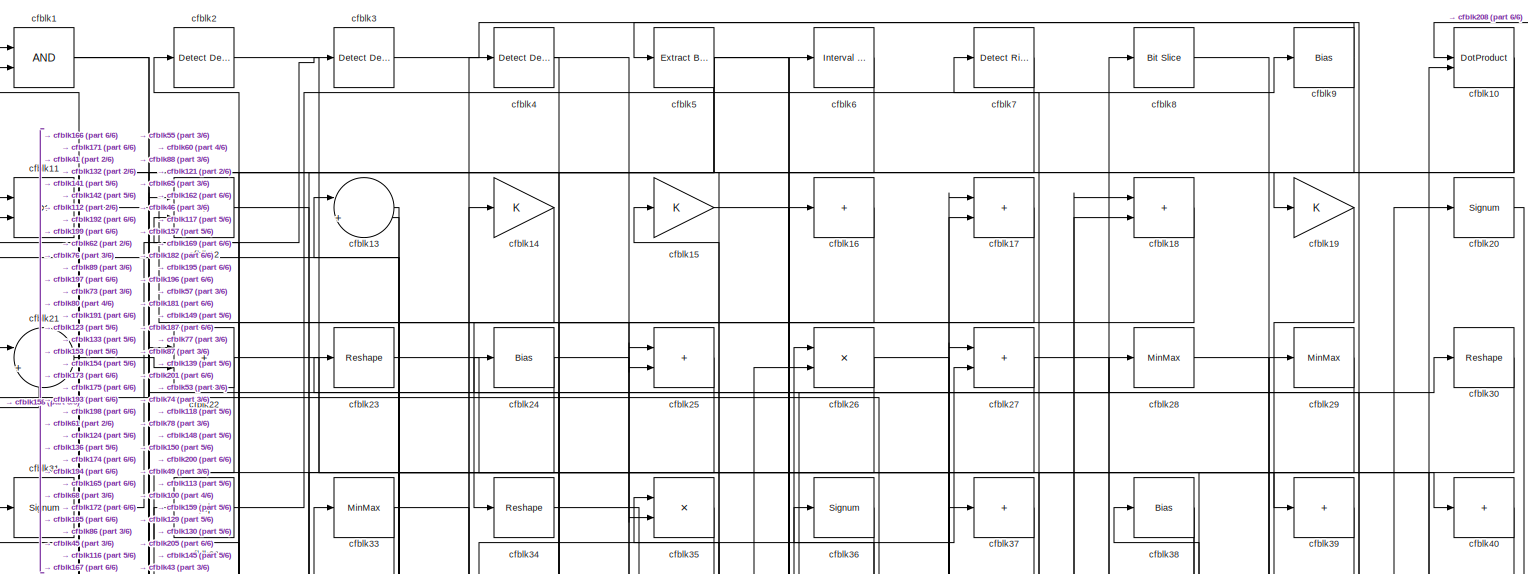
[diagram: root canvas - part 1/6, full width, top band]
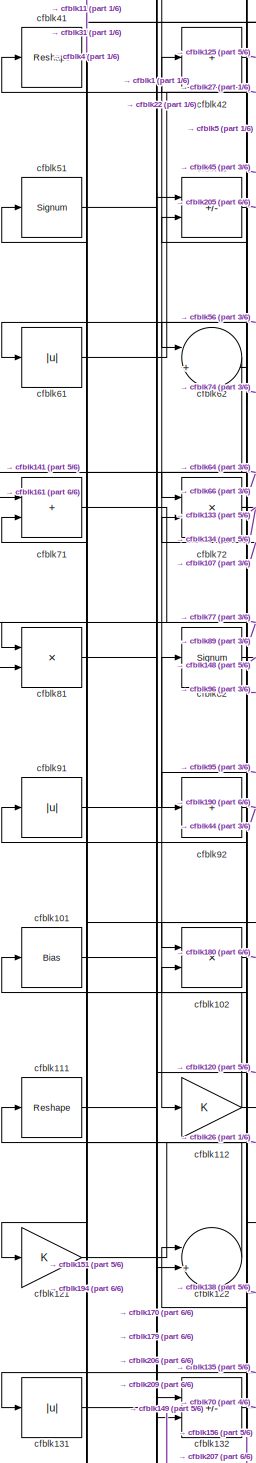
[diagram: root canvas - part 2/6, middle left region]
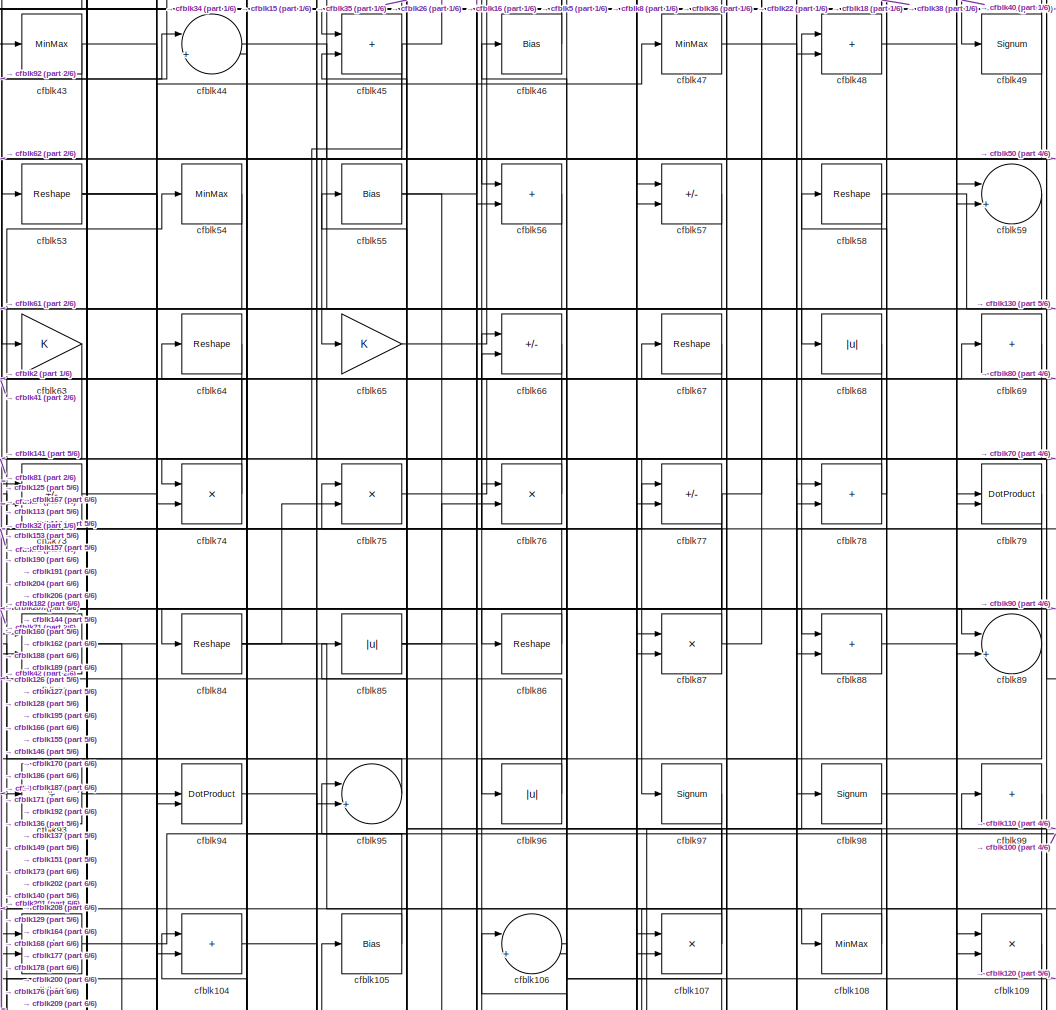
[diagram: root canvas - part 3/6, central region]
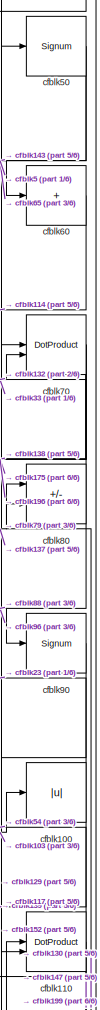
[diagram: root canvas - part 4/6, middle right region]
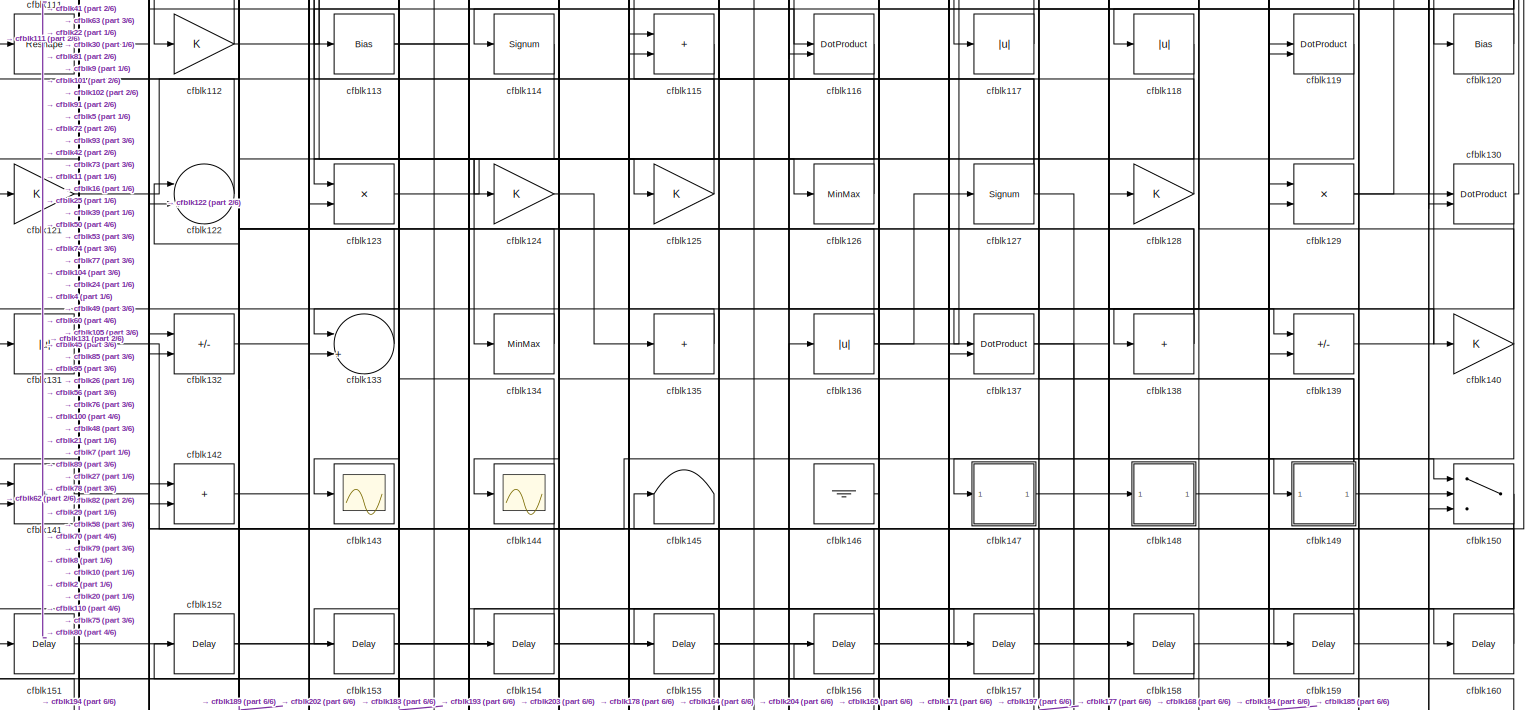
[diagram: root canvas - part 5/6, full width, middle band]
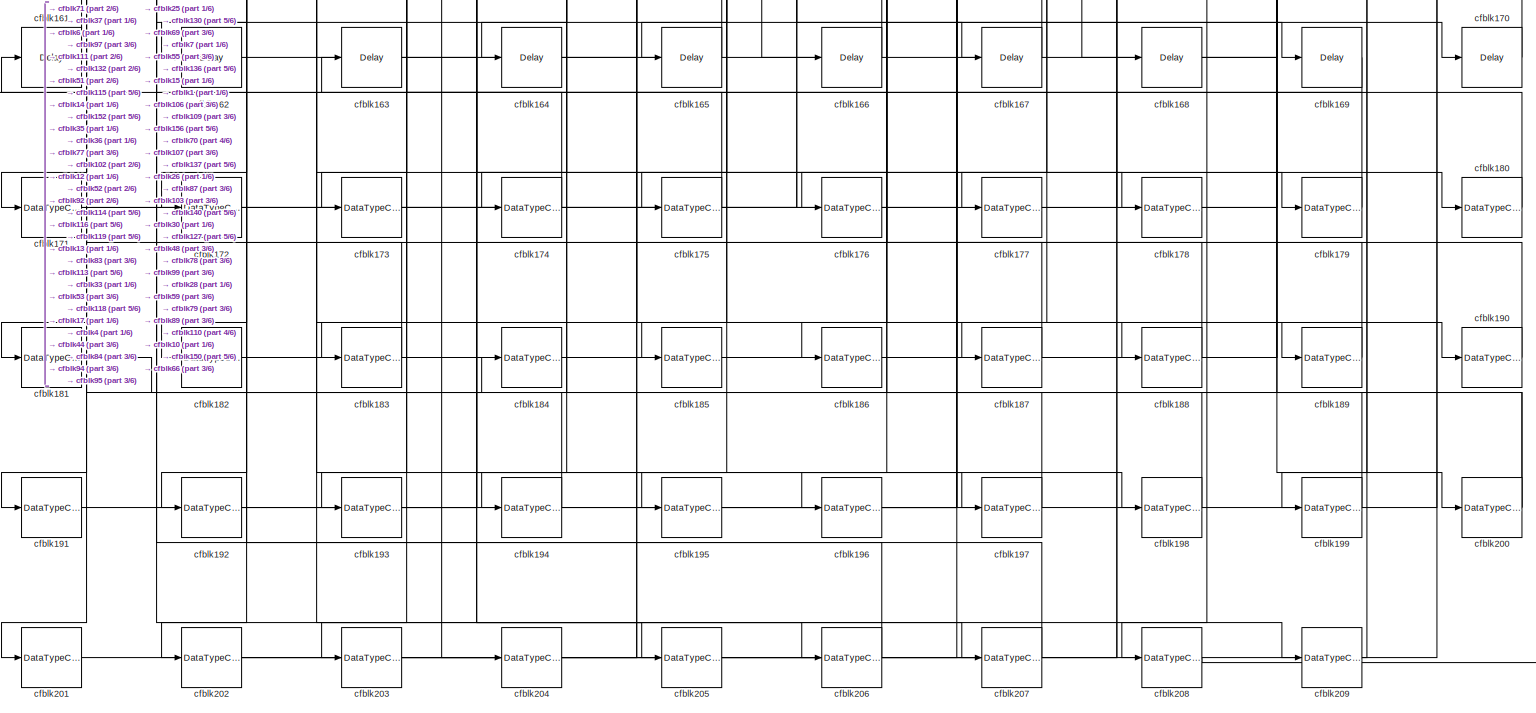
[diagram: root canvas - part 6/6, full width, bottom band]
MODEL slx_96a3ec69df8d
KIND model
CONFIG AbsTol = auto
CONFIG EnableMultiTasking = off
CONFIG FixedStep = auto
CONFIG MaxStep = auto
CONFIG MinStep = auto
CONFIG RelTol = 1e-3
CONFIG SampleTimeConstraint = Unconstrained
CONFIG SolverName = VariableStepAuto
CONFIG StartTime = 0.0
CONFIG StopTime = 10.0
BLOCK [Logic] cfblk1
  AllPortsSameDT = off
  OutDataTypeStr = boolean
BLOCK [DotProduct] cfblk10
  OutDataTypeStr = Inherit: Inherit via internal rule
BLOCK [Abs] cfblk100
  SaturateOnIntegerOverflow = off
BLOCK [Bias] cfblk101
  Bias = 0.0
  SaturateOnIntegerOverflow = off
BLOCK [Product] cfblk102
  Inputs = */
  RndMeth = Zero
  SaturateOnIntegerOverflow = on
BLOCK [Sum] cfblk103
  IconShape = rectangular
  Inputs = +-
BLOCK [Sum] cfblk104
  IconShape = rectangular
BLOCK [Bias] cfblk105
  Bias = 0.0
  SaturateOnIntegerOverflow = off
BLOCK [Sum] cfblk106
  Inputs = |++
BLOCK [Product] cfblk107
  Inputs = */
  RndMeth = Zero
  SaturateOnIntegerOverflow = on
BLOCK [MinMax] cfblk108
BLOCK [Product] cfblk109
  Inputs = */
  RndMeth = Zero
  SaturateOnIntegerOverflow = on
BLOCK [Product] cfblk11
  Inputs = */
  RndMeth = Zero
  SaturateOnIntegerOverflow = on
BLOCK [DotProduct] cfblk110
  OutDataTypeStr = Inherit: Inherit via internal rule
BLOCK [Reshape] cfblk111
BLOCK [Gain] cfblk112
BLOCK [Bias] cfblk113
  Bias = 0.0
  SaturateOnIntegerOverflow = off
BLOCK [Signum] cfblk114
BLOCK [Sum] cfblk115
  IconShape = rectangular
BLOCK [DotProduct] cfblk116
  OutDataTypeStr = Inherit: Inherit via internal rule
BLOCK [Abs] cfblk117
  SaturateOnIntegerOverflow = off
BLOCK [Abs] cfblk118
  SaturateOnIntegerOverflow = off
BLOCK [DotProduct] cfblk119
  OutDataTypeStr = Inherit: Inherit via internal rule
BLOCK [Sum] cfblk12
  IconShape = rectangular
  Inputs = +-
BLOCK [Bias] cfblk120
  Bias = 0.0
  SaturateOnIntegerOverflow = off
BLOCK [Gain] cfblk121
BLOCK [Sum] cfblk122
  Inputs = |++
BLOCK [Product] cfblk123
  Inputs = */
  RndMeth = Zero
  SaturateOnIntegerOverflow = on
BLOCK [Gain] cfblk124
BLOCK [Gain] cfblk125
BLOCK [MinMax] cfblk126
BLOCK [Signum] cfblk127
BLOCK [Gain] cfblk128
BLOCK [Product] cfblk129
  Inputs = */
  RndMeth = Zero
  SaturateOnIntegerOverflow = on
BLOCK [Sum] cfblk13
  Inputs = |++
BLOCK [DotProduct] cfblk130
  OutDataTypeStr = Inherit: Inherit via internal rule
BLOCK [Abs] cfblk131
  SaturateOnIntegerOverflow = off
BLOCK [Sum] cfblk132
  IconShape = rectangular
  Inputs = +-
BLOCK [Sum] cfblk133
  Inputs = |++
BLOCK [MinMax] cfblk134
BLOCK [Sum] cfblk135
  IconShape = rectangular
  Inputs = +
BLOCK [Abs] cfblk136
  SaturateOnIntegerOverflow = off
BLOCK [DotProduct] cfblk137
  OutDataTypeStr = Inherit: Inherit via internal rule
BLOCK [Sum] cfblk138
  IconShape = rectangular
  Inputs = +
BLOCK [Sum] cfblk139
  IconShape = rectangular
  Inputs = +-
BLOCK [Gain] cfblk14
BLOCK [Gain] cfblk140
BLOCK [Sum] cfblk141
  IconShape = rectangular
BLOCK [Sum] cfblk142
  IconShape = rectangular
BLOCK [Scope] cfblk143
  Floating = off
  NumInputPorts = 1
  ScopeSpecificationString = Simulink.scopes.TimeScopeBlockCfg('CurrentConfiguration', extmgr.ConfigurationSet(extmgr.Configuration('Core','General UI',true),extmgr.Configuration('Core','Source UI',true),extmgr.Configuration('Sources','WiredSimulink',true,'DataLoggingVariableName','ScopeData2','DataLoggingSaveFormat','Array','DataLoggingLimitDataPoints',true,'DataLoggingDecimation','1'),extmgr.Configuration('Visuals','Time Do...<+868ch>
BLOCK [Scope] cfblk144
  Floating = off
  NumInputPorts = 1
  ScopeSpecificationString = Simulink.scopes.TimeScopeBlockCfg('CurrentConfiguration', extmgr.ConfigurationSet(extmgr.Configuration('Core','General UI',true),extmgr.Configuration('Core','Source UI',true),extmgr.Configuration('Sources','WiredSimulink',true,'DataLoggingVariableName','ScopeData2','DataLoggingSaveFormat','Array','DataLoggingLimitDataPoints',true,'DataLoggingDecimation','1'),extmgr.Configuration('Visuals','Time Do...<+868ch>
BLOCK [Terminator] cfblk145
BLOCK [Ground] cfblk146
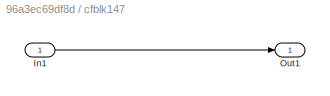
BLOCK [SubSystem] cfblk147
  LibrarySourceBlock = hdlsllib/Ports &\nSubsystems/Subsystem
BLOCK [Inport] cfblk147/In1
BLOCK [Outport] cfblk147/Out1
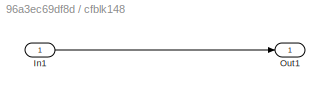
BLOCK [SubSystem] cfblk148
  LibrarySourceBlock = hdlsllib/Ports &\nSubsystems/Subsystem
BLOCK [Inport] cfblk148/In1
BLOCK [Outport] cfblk148/Out1
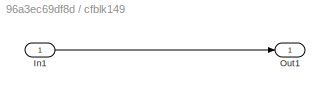
BLOCK [SubSystem] cfblk149
  LibrarySourceBlock = hdlsllib/Ports &\nSubsystems/Subsystem
BLOCK [Inport] cfblk149/In1
BLOCK [Outport] cfblk149/Out1
BLOCK [Gain] cfblk15
BLOCK [Switch] cfblk150
  InputSameDT = off
  SaturateOnIntegerOverflow = off
BLOCK [Delay] cfblk151
  InputPortMap = u0
  SampleTime = 1
BLOCK [Delay] cfblk152
  InputPortMap = u0
  SampleTime = 1
BLOCK [Delay] cfblk153
  InputPortMap = u0
  SampleTime = 1
BLOCK [Delay] cfblk154
  InputPortMap = u0
  SampleTime = 1
BLOCK [Delay] cfblk155
  InputPortMap = u0
  SampleTime = 1
BLOCK [Delay] cfblk156
  InputPortMap = u0
  SampleTime = 1
BLOCK [Delay] cfblk157
  InputPortMap = u0
  SampleTime = 1
BLOCK [Delay] cfblk158
  InputPortMap = u0
  SampleTime = 1
BLOCK [Delay] cfblk159
  InputPortMap = u0
  SampleTime = 1
BLOCK [Sum] cfblk16
  IconShape = rectangular
  Inputs = +
BLOCK [Delay] cfblk160
  InputPortMap = u0
  SampleTime = 1
BLOCK [Delay] cfblk161
  InputPortMap = u0
  SampleTime = 1
BLOCK [Delay] cfblk162
  InputPortMap = u0
  SampleTime = 1
BLOCK [Delay] cfblk163
  InputPortMap = u0
  SampleTime = 1
BLOCK [Delay] cfblk164
  InputPortMap = u0
  SampleTime = 1
BLOCK [Delay] cfblk165
  InputPortMap = u0
  SampleTime = 1
BLOCK [Delay] cfblk166
  InputPortMap = u0
  SampleTime = 1
BLOCK [Delay] cfblk167
  InputPortMap = u0
  SampleTime = 1
BLOCK [Delay] cfblk168
  InputPortMap = u0
  SampleTime = 1
BLOCK [Delay] cfblk169
  InputPortMap = u0
  SampleTime = 1
BLOCK [Sum] cfblk17
  IconShape = rectangular
BLOCK [Delay] cfblk170
  InputPortMap = u0
  SampleTime = 1
BLOCK [DataTypeConversion] cfblk171
  RndMeth = Floor
  SaturateOnIntegerOverflow = off
BLOCK [DataTypeConversion] cfblk172
  OutDataTypeStr = uint8
  RndMeth = Floor
  SaturateOnIntegerOverflow = off
BLOCK [DataTypeConversion] cfblk173
  OutDataTypeStr = uint8
  RndMeth = Floor
  SaturateOnIntegerOverflow = off
BLOCK [DataTypeConversion] cfblk174
  OutDataTypeStr = uint8
  RndMeth = Floor
  SaturateOnIntegerOverflow = off
BLOCK [DataTypeConversion] cfblk175
  OutDataTypeStr = uint8
  RndMeth = Floor
  SaturateOnIntegerOverflow = off
BLOCK [DataTypeConversion] cfblk176
  OutDataTypeStr = uint8
  RndMeth = Floor
  SaturateOnIntegerOverflow = off
BLOCK [DataTypeConversion] cfblk177
  OutDataTypeStr = uint8
  RndMeth = Floor
  SaturateOnIntegerOverflow = off
BLOCK [DataTypeConversion] cfblk178
  OutDataTypeStr = uint8
  RndMeth = Floor
  SaturateOnIntegerOverflow = off
BLOCK [DataTypeConversion] cfblk179
  OutDataTypeStr = uint8
  RndMeth = Floor
  SaturateOnIntegerOverflow = off
BLOCK [Sum] cfblk18
  IconShape = rectangular
BLOCK [DataTypeConversion] cfblk180
  OutDataTypeStr = uint8
  RndMeth = Floor
  SaturateOnIntegerOverflow = off
BLOCK [DataTypeConversion] cfblk181
  OutDataTypeStr = uint8
  RndMeth = Floor
  SaturateOnIntegerOverflow = off
BLOCK [DataTypeConversion] cfblk182
  OutDataTypeStr = uint8
  RndMeth = Floor
  SaturateOnIntegerOverflow = off
BLOCK [DataTypeConversion] cfblk183
  OutDataTypeStr = uint8
  RndMeth = Floor
  SaturateOnIntegerOverflow = off
BLOCK [DataTypeConversion] cfblk184
  OutDataTypeStr = uint8
  RndMeth = Floor
  SaturateOnIntegerOverflow = off
BLOCK [DataTypeConversion] cfblk185
  OutDataTypeStr = uint8
  RndMeth = Floor
  SaturateOnIntegerOverflow = off
BLOCK [DataTypeConversion] cfblk186
  OutDataTypeStr = uint8
  RndMeth = Floor
  SaturateOnIntegerOverflow = off
BLOCK [DataTypeConversion] cfblk187
  OutDataTypeStr = uint8
  RndMeth = Floor
  SaturateOnIntegerOverflow = off
BLOCK [DataTypeConversion] cfblk188
  OutDataTypeStr = uint8
  RndMeth = Floor
  SaturateOnIntegerOverflow = off
BLOCK [DataTypeConversion] cfblk189
  OutDataTypeStr = uint8
  RndMeth = Floor
  SaturateOnIntegerOverflow = off
BLOCK [Gain] cfblk19
BLOCK [DataTypeConversion] cfblk190
  OutDataTypeStr = uint8
  RndMeth = Floor
  SaturateOnIntegerOverflow = off
BLOCK [DataTypeConversion] cfblk191
  OutDataTypeStr = uint8
  RndMeth = Floor
  SaturateOnIntegerOverflow = off
BLOCK [DataTypeConversion] cfblk192
  OutDataTypeStr = uint8
  RndMeth = Floor
  SaturateOnIntegerOverflow = off
BLOCK [DataTypeConversion] cfblk193
  OutDataTypeStr = uint8
  RndMeth = Floor
  SaturateOnIntegerOverflow = off
BLOCK [DataTypeConversion] cfblk194
  RndMeth = Floor
  SaturateOnIntegerOverflow = off
BLOCK [DataTypeConversion] cfblk195
  OutDataTypeStr = uint8
  RndMeth = Floor
  SaturateOnIntegerOverflow = off
BLOCK [DataTypeConversion] cfblk196
  OutDataTypeStr = uint8
  RndMeth = Floor
  SaturateOnIntegerOverflow = off
BLOCK [DataTypeConversion] cfblk197
  OutDataTypeStr = uint8
  RndMeth = Floor
  SaturateOnIntegerOverflow = off
BLOCK [DataTypeConversion] cfblk198
  OutDataTypeStr = uint8
  RndMeth = Floor
  SaturateOnIntegerOverflow = off
BLOCK [DataTypeConversion] cfblk199
  OutDataTypeStr = uint8
  RndMeth = Floor
  SaturateOnIntegerOverflow = off
BLOCK [Reference] cfblk2  REF=simulink/Logic and Bit
Operations/Detect
Decrease
  LibrarySourceBlock = hdlsllib/Logic and Bit\nOperations/Detect\nDecrease
  SourceBlock = simulink/Logic and Bit\nOperations/Detect\nDecrease
  SourceType = Detect Decrease
BLOCK [Signum] cfblk20
BLOCK [DataTypeConversion] cfblk200
  RndMeth = Floor
  SaturateOnIntegerOverflow = off
BLOCK [DataTypeConversion] cfblk201
  OutDataTypeStr = uint8
  RndMeth = Floor
  SaturateOnIntegerOverflow = off
BLOCK [DataTypeConversion] cfblk202
  RndMeth = Floor
  SaturateOnIntegerOverflow = off
BLOCK [DataTypeConversion] cfblk203
  OutDataTypeStr = uint8
  RndMeth = Floor
  SaturateOnIntegerOverflow = off
BLOCK [DataTypeConversion] cfblk204
  OutDataTypeStr = uint8
  RndMeth = Floor
  SaturateOnIntegerOverflow = off
BLOCK [DataTypeConversion] cfblk205
  OutDataTypeStr = uint8
  RndMeth = Floor
  SaturateOnIntegerOverflow = off
BLOCK [DataTypeConversion] cfblk206
  OutDataTypeStr = uint8
  RndMeth = Floor
  SaturateOnIntegerOverflow = off
BLOCK [DataTypeConversion] cfblk207
  OutDataTypeStr = uint8
  RndMeth = Floor
  SaturateOnIntegerOverflow = off
BLOCK [DataTypeConversion] cfblk208
  OutDataTypeStr = uint8
  RndMeth = Floor
  SaturateOnIntegerOverflow = off
BLOCK [DataTypeConversion] cfblk209
  OutDataTypeStr = uint8
  RndMeth = Floor
  SaturateOnIntegerOverflow = off
BLOCK [Sum] cfblk21
  Inputs = |++
BLOCK [Sum] cfblk22
  IconShape = rectangular
BLOCK [Reshape] cfblk23
BLOCK [Bias] cfblk24
  Bias = 0.0
  SaturateOnIntegerOverflow = off
BLOCK [Sum] cfblk25
  IconShape = rectangular
BLOCK [Product] cfblk26
  Inputs = */
  RndMeth = Zero
  SaturateOnIntegerOverflow = on
BLOCK [Sum] cfblk27
  IconShape = rectangular
BLOCK [MinMax] cfblk28
BLOCK [MinMax] cfblk29
BLOCK [Reference] cfblk3  REF=simulink/Logic and Bit
Operations/Detect
Decrease
  LibrarySourceBlock = hdlsllib/Logic and Bit\nOperations/Detect\nDecrease
  SourceBlock = simulink/Logic and Bit\nOperations/Detect\nDecrease
  SourceType = Detect Decrease
BLOCK [Reshape] cfblk30
BLOCK [Signum] cfblk31
BLOCK [Abs] cfblk32
  SaturateOnIntegerOverflow = off
BLOCK [MinMax] cfblk33
BLOCK [Reshape] cfblk34
BLOCK [Product] cfblk35
  Inputs = */
  RndMeth = Zero
  SaturateOnIntegerOverflow = on
BLOCK [Signum] cfblk36
BLOCK [Sum] cfblk37
  IconShape = rectangular
  Inputs = +
BLOCK [Bias] cfblk38
  Bias = 0.0
  SaturateOnIntegerOverflow = off
BLOCK [Sum] cfblk39
  IconShape = rectangular
  Inputs = +
BLOCK [Reference] cfblk4  REF=simulink/Logic and Bit
Operations/Detect
Decrease
  LibrarySourceBlock = hdlsllib/Logic and Bit\nOperations/Detect\nDecrease
  SourceBlock = simulink/Logic and Bit\nOperations/Detect\nDecrease
  SourceType = Detect Decrease
BLOCK [Sum] cfblk40
  IconShape = rectangular
  Inputs = +
BLOCK [Reshape] cfblk41
BLOCK [Sum] cfblk42
  IconShape = rectangular
  Inputs = +
BLOCK [MinMax] cfblk43
BLOCK [Sum] cfblk44
  Inputs = |++
BLOCK [Sum] cfblk45
  IconShape = rectangular
BLOCK [Bias] cfblk46
  Bias = 0.0
  SaturateOnIntegerOverflow = off
BLOCK [MinMax] cfblk47
BLOCK [Sum] cfblk48
  IconShape = rectangular
BLOCK [Signum] cfblk49
BLOCK [Reference] cfblk5  REF=simulink/Logic and Bit
Operations/Extract Bits
  LibrarySourceBlock = hdlsllib/Logic and Bit\nOperations/Extract Bits
  SourceBlock = simulink/Logic and Bit\nOperations/Extract Bits
  SourceType = Extract Bits
BLOCK [Signum] cfblk50
BLOCK [Signum] cfblk51
BLOCK [Sum] cfblk52
  IconShape = rectangular
  Inputs = +-
BLOCK [Reshape] cfblk53
BLOCK [MinMax] cfblk54
BLOCK [Bias] cfblk55
  Bias = 0.0
  SaturateOnIntegerOverflow = off
BLOCK [Sum] cfblk56
  IconShape = rectangular
BLOCK [Sum] cfblk57
  IconShape = rectangular
  Inputs = +-
BLOCK [Reshape] cfblk58
BLOCK [Sum] cfblk59
  Inputs = |++
BLOCK [Reference] cfblk6  REF=hdlsllib/Logic and Bit
Operations/Interval Test
  SourceBlock = hdlsllib/Logic and Bit\nOperations/Interval Test
  SourceType = Interval Test
BLOCK [Sum] cfblk60
  IconShape = rectangular
  Inputs = +
BLOCK [Abs] cfblk61
  SaturateOnIntegerOverflow = off
BLOCK [Sum] cfblk62
  Inputs = |++
BLOCK [Gain] cfblk63
BLOCK [Reshape] cfblk64
BLOCK [Gain] cfblk65
BLOCK [Sum] cfblk66
  IconShape = rectangular
  Inputs = +-
BLOCK [Reshape] cfblk67
BLOCK [Abs] cfblk68
  SaturateOnIntegerOverflow = off
BLOCK [Sum] cfblk69
  IconShape = rectangular
  Inputs = +
BLOCK [Reference] cfblk7  REF=hdlsllib/Logic and Bit
Operations/Detect Rise
Nonnegative
  SourceBlock = hdlsllib/Logic and Bit\nOperations/Detect Rise\nNonnegative
  SourceType = Detect Rise Nonnegative
BLOCK [DotProduct] cfblk70
  OutDataTypeStr = Inherit: Inherit via internal rule
BLOCK [Sum] cfblk71
  IconShape = rectangular
BLOCK [Product] cfblk72
  Inputs = */
  RndMeth = Zero
  SaturateOnIntegerOverflow = on
BLOCK [Sum] cfblk73
  IconShape = rectangular
  Inputs = +-
BLOCK [Product] cfblk74
  Inputs = */
  RndMeth = Zero
  SaturateOnIntegerOverflow = on
BLOCK [Product] cfblk75
  Inputs = */
  RndMeth = Zero
  SaturateOnIntegerOverflow = on
BLOCK [Product] cfblk76
  Inputs = */
  RndMeth = Zero
  SaturateOnIntegerOverflow = on
BLOCK [Sum] cfblk77
  IconShape = rectangular
  Inputs = +-
BLOCK [Sum] cfblk78
  IconShape = rectangular
BLOCK [DotProduct] cfblk79
  OutDataTypeStr = Inherit: Inherit via internal rule
BLOCK [Reference] cfblk8  REF=hdlsllib/Logic and Bit
Operations/Bit Slice
  SourceBlock = hdlsllib/Logic and Bit\nOperations/Bit Slice
  SourceType = Bit Slice
BLOCK [Sum] cfblk80
  IconShape = rectangular
  Inputs = +-
BLOCK [Product] cfblk81
  Inputs = */
  RndMeth = Zero
  SaturateOnIntegerOverflow = on
BLOCK [Signum] cfblk82
BLOCK [Sum] cfblk83
  IconShape = rectangular
BLOCK [Reshape] cfblk84
BLOCK [Abs] cfblk85
  SaturateOnIntegerOverflow = off
BLOCK [Reshape] cfblk86
BLOCK [Product] cfblk87
  Inputs = */
  RndMeth = Zero
  SaturateOnIntegerOverflow = on
BLOCK [Sum] cfblk88
  IconShape = rectangular
BLOCK [Sum] cfblk89
  Inputs = |++
BLOCK [Bias] cfblk9
  Bias = 0.0
  SaturateOnIntegerOverflow = off
BLOCK [Signum] cfblk90
BLOCK [Abs] cfblk91
  SaturateOnIntegerOverflow = off
BLOCK [Sum] cfblk92
  IconShape = rectangular
  Inputs = +
BLOCK [Sum] cfblk93
  IconShape = rectangular
  Inputs = +
BLOCK [DotProduct] cfblk94
  OutDataTypeStr = Inherit: Inherit via internal rule
BLOCK [Sum] cfblk95
  Inputs = |++
BLOCK [Abs] cfblk96
  SaturateOnIntegerOverflow = off
BLOCK [Signum] cfblk97
BLOCK [Signum] cfblk98
BLOCK [Sum] cfblk99
  IconShape = rectangular
  Inputs = +
NET cfblk100:1 -> cfblk117:1, cfblk23:1
LINE cfblk101:1 -> cfblk122:2
LINE cfblk102:1 -> cfblk180:1
LINE cfblk103:1 -> cfblk100:1
LINE cfblk104:1 -> cfblk160:1
LINE cfblk105:1 -> cfblk64:1
LINE cfblk106:1 -> cfblk186:1
NET cfblk107:1 -> cfblk46:1, cfblk72:2
LINE cfblk108:1 -> cfblk67:1
LINE cfblk109:1 -> cfblk176:1
NET cfblk10:1 -> cfblk124:1, cfblk159:1
NET cfblk110:1 -> cfblk147:1, cfblk199:1, cfblk54:1
LINE cfblk111:1 -> cfblk209:1
NET cfblk112:1 -> cfblk31:1, cfblk4:1
NET cfblk113:1 -> cfblk178:1, cfblk77:1
LINE cfblk114:1 -> cfblk193:1
LINE cfblk115:1 -> cfblk202:1
LINE cfblk116:1 -> cfblk203:1
LINE cfblk117:1 -> cfblk21:1
LINE cfblk118:1 -> cfblk164:1
LINE cfblk119:1 -> cfblk183:1
LINE cfblk11:1 -> cfblk25:2
LINE cfblk120:1 -> cfblk75:1
LINE cfblk121:1 -> cfblk26:1
LINE cfblk122:1 -> cfblk71:2
LINE cfblk123:1 -> cfblk126:1
LINE cfblk124:1 -> cfblk135:1
LINE cfblk125:1 -> cfblk73:1
LINE cfblk126:1 -> cfblk95:1
NET cfblk127:1 -> cfblk105:1, cfblk168:1, cfblk45:2
LINE cfblk128:1 -> cfblk85:1
NET cfblk129:1 -> cfblk20:1, cfblk50:1
LINE cfblk12:1 -> cfblk197:1
NET cfblk130:1 -> cfblk165:1, cfblk80:2
LINE cfblk131:1 -> cfblk149:1
LINE cfblk132:1 -> cfblk70:2
LINE cfblk133:1 -> cfblk91:1
LINE cfblk134:1 -> cfblk111:1
LINE cfblk135:1 -> cfblk131:1
NET cfblk136:1 -> cfblk127:1, cfblk24:1, cfblk48:1
NET cfblk137:1 -> cfblk158:1, cfblk80:1
NET cfblk138:1 -> cfblk101:1, cfblk102:2
LINE cfblk139:1 -> cfblk110:1
LINE cfblk13:1 -> cfblk173:1
NET cfblk140:1 -> cfblk177:1, cfblk58:1
LINE cfblk141:1 -> cfblk30:1
LINE cfblk142:1 -> cfblk93:1
LINE cfblk146:1 -> cfblk76:1
LINE cfblk147/In1:1 -> cfblk147/Out1:1
LINE cfblk147:1 -> cfblk128:1
LINE cfblk148/In1:1 -> cfblk148/Out1:1
LINE cfblk148:1 -> cfblk29:1
LINE cfblk149/In1:1 -> cfblk149/Out1:1
NET cfblk149:1 -> cfblk104:1, cfblk150:2, cfblk7:1
LINE cfblk14:1 -> cfblk192:1
NET cfblk150:1 -> cfblk154:1, cfblk155:1
LINE cfblk151:1 -> cfblk78:1
LINE cfblk152:1 -> cfblk70:1
LINE cfblk153:1 -> cfblk74:2
LINE cfblk154:1 -> cfblk11:1
LINE cfblk155:1 -> cfblk56:2
LINE cfblk156:1 -> cfblk122:1
LINE cfblk157:1 -> cfblk27:1
LINE cfblk158:1 -> cfblk21:2
LINE cfblk159:1 -> cfblk22:1
LINE cfblk15:1 -> cfblk167:1
LINE cfblk160:1 -> cfblk142:1
LINE cfblk161:1 -> cfblk71:1
LINE cfblk162:1 -> cfblk95:2
LINE cfblk163:1 -> cfblk179:1
LINE cfblk164:1 -> cfblk89:2
LINE cfblk165:1 -> cfblk25:1
LINE cfblk166:1 -> cfblk1:2
LINE cfblk167:1 -> cfblk103:2
LINE cfblk168:1 -> cfblk59:2
LINE cfblk169:1 -> cfblk1:1
LINE cfblk16:1 -> cfblk133:1
LINE cfblk170:1 -> cfblk66:2
NET cfblk171:1 -> cfblk136:1, cfblk77:2
LINE cfblk172:1 -> cfblk6:1
LINE cfblk173:1 -> cfblk78:2
LINE cfblk174:1 -> cfblk13:1
LINE cfblk175:1 -> cfblk13:2
LINE cfblk176:1 -> cfblk107:1
LINE cfblk177:1 -> cfblk109:1
LINE cfblk178:1 -> cfblk109:2
LINE cfblk179:1 -> cfblk132:1
LINE cfblk17:1 -> cfblk194:1
LINE cfblk180:1 -> cfblk163:1
LINE cfblk181:1 -> cfblk184:1
LINE cfblk182:1 -> cfblk37:1
LINE cfblk183:1 -> cfblk161:1
LINE cfblk184:1 -> cfblk119:1
LINE cfblk185:1 -> cfblk119:2
LINE cfblk186:1 -> cfblk107:2
LINE cfblk187:1 -> cfblk106:1
LINE cfblk188:1 -> cfblk106:2
LINE cfblk189:1 -> cfblk152:1
LINE cfblk18:1 -> cfblk34:1
LINE cfblk190:1 -> cfblk94:1
LINE cfblk191:1 -> cfblk94:2
LINE cfblk192:1 -> cfblk87:1
LINE cfblk193:1 -> cfblk14:1
NET cfblk194:1 -> cfblk150:3, cfblk51:1
LINE cfblk195:1 -> cfblk17:1
LINE cfblk196:1 -> cfblk17:2
LINE cfblk197:1 -> cfblk156:1
LINE cfblk198:1 -> cfblk12:1
LINE cfblk199:1 -> cfblk12:2
LINE cfblk19:1 -> cfblk49:1
NET cfblk1:1 -> cfblk132:2, cfblk35:2
NET cfblk200:1 -> cfblk44:2, cfblk79:1
LINE cfblk201:1 -> cfblk28:1
NET cfblk202:1 -> cfblk137:2, cfblk48:2
LINE cfblk203:1 -> cfblk115:1
LINE cfblk204:1 -> cfblk115:2
LINE cfblk205:1 -> cfblk10:2
LINE cfblk206:1 -> cfblk52:1
LINE cfblk207:1 -> cfblk52:2
LINE cfblk208:1 -> cfblk10:1
LINE cfblk209:1 -> cfblk99:1
LINE cfblk20:1 -> cfblk145:1
LINE cfblk21:1 -> cfblk22:2
NET cfblk22:1 -> cfblk112:1, cfblk57:1
LINE cfblk23:1 -> cfblk39:1
NET cfblk24:1 -> cfblk40:1, cfblk73:2
LINE cfblk25:1 -> cfblk123:1
NET cfblk26:1 -> cfblk116:2, cfblk169:1
NET cfblk27:1 -> cfblk139:1, cfblk153:1
LINE cfblk28:1 -> cfblk200:1
LINE cfblk29:1 -> cfblk118:1
LINE cfblk2:1 -> cfblk130:1
LINE cfblk30:1 -> cfblk187:1
LINE cfblk31:1 -> cfblk3:1
LINE cfblk32:1 -> cfblk9:1
NET cfblk33:1 -> cfblk191:1, cfblk198:1
LINE cfblk34:1 -> cfblk68:1
LINE cfblk35:1 -> cfblk172:1
LINE cfblk36:1 -> cfblk162:1
LINE cfblk37:1 -> cfblk181:1
NET cfblk38:1 -> cfblk53:1, cfblk74:1
LINE cfblk39:1 -> cfblk113:1
LINE cfblk3:1 -> cfblk19:1
LINE cfblk40:1 -> cfblk43:1
NET cfblk41:1 -> cfblk11:2, cfblk151:1
LINE cfblk42:1 -> cfblk125:1
NET cfblk43:1 -> cfblk57:2, cfblk63:1
LINE cfblk44:1 -> cfblk56:1
NET cfblk45:1 -> cfblk26:2, cfblk62:2, cfblk97:1
LINE cfblk46:1 -> cfblk36:1
LINE cfblk47:1 -> cfblk98:1
LINE cfblk48:1 -> cfblk129:1
NET cfblk49:1 -> cfblk144:1, cfblk45:1
NET cfblk4:1 -> cfblk139:2, cfblk174:1
NET cfblk50:1 -> cfblk143:1, cfblk65:1
LINE cfblk51:1 -> cfblk170:1
LINE cfblk52:1 -> cfblk205:1
NET cfblk53:1 -> cfblk116:1, cfblk207:1, cfblk88:1
LINE cfblk54:1 -> cfblk83:1
NET cfblk55:1 -> cfblk166:1, cfblk16:1
LINE cfblk56:1 -> cfblk61:1
LINE cfblk57:1 -> cfblk86:1
NET cfblk58:1 -> cfblk130:2, cfblk83:2
LINE cfblk59:1 -> cfblk103:1
NET cfblk5:1 -> cfblk121:1, cfblk123:2, cfblk60:1, cfblk62:1, cfblk88:2
LINE cfblk60:1 -> cfblk114:1
LINE cfblk61:1 -> cfblk27:2
LINE cfblk62:1 -> cfblk141:2
LINE cfblk63:1 -> cfblk141:1
LINE cfblk64:1 -> cfblk72:1
LINE cfblk65:1 -> cfblk8:1
LINE cfblk66:1 -> cfblk81:1
LINE cfblk67:1 -> cfblk87:2
LINE cfblk68:1 -> cfblk104:2
LINE cfblk69:1 -> cfblk195:1
LINE cfblk6:1 -> cfblk171:1
NET cfblk70:1 -> cfblk138:1, cfblk175:1, cfblk196:1, cfblk79:2
LINE cfblk71:1 -> cfblk89:1
NET cfblk72:1 -> cfblk102:1, cfblk133:2, cfblk134:1
LINE cfblk73:1 -> cfblk157:1
LINE cfblk74:1 -> cfblk41:1
LINE cfblk75:1 -> cfblk69:1
LINE cfblk76:1 -> cfblk2:1
NET cfblk77:1 -> cfblk182:1, cfblk18:1, cfblk81:2, cfblk84:1
NET cfblk78:1 -> cfblk35:1, cfblk38:1
LINE cfblk79:1 -> cfblk129:2
LINE cfblk7:1 -> cfblk185:1
NET cfblk80:1 -> cfblk33:1, cfblk96:1
LINE cfblk81:1 -> cfblk120:1
LINE cfblk82:1 -> cfblk148:1
NET cfblk83:1 -> cfblk204:1, cfblk206:1
NET cfblk84:1 -> cfblk108:1, cfblk188:1, cfblk75:2
NET cfblk85:1 -> cfblk140:1, cfblk55:1, cfblk76:2
LINE cfblk86:1 -> cfblk15:1
NET cfblk87:1 -> cfblk18:2, cfblk66:1
LINE cfblk88:1 -> cfblk90:1
NET cfblk89:1 -> cfblk137:1, cfblk32:1
LINE cfblk8:1 -> cfblk150:1
LINE cfblk90:1 -> cfblk110:2
LINE cfblk91:1 -> cfblk82:1
NET cfblk92:1 -> cfblk190:1, cfblk44:1
LINE cfblk93:1 -> cfblk47:1
LINE cfblk94:1 -> cfblk189:1
LINE cfblk95:1 -> cfblk92:1
LINE cfblk96:1 -> cfblk42:1
LINE cfblk97:1 -> cfblk201:1
LINE cfblk98:1 -> cfblk59:1
LINE cfblk99:1 -> cfblk208:1
NET cfblk9:1 -> cfblk142:2, cfblk5:1
note: NET lines group one-source signal fan-out (src -> all destinations, sorted); 1:1 wires keep LINE
